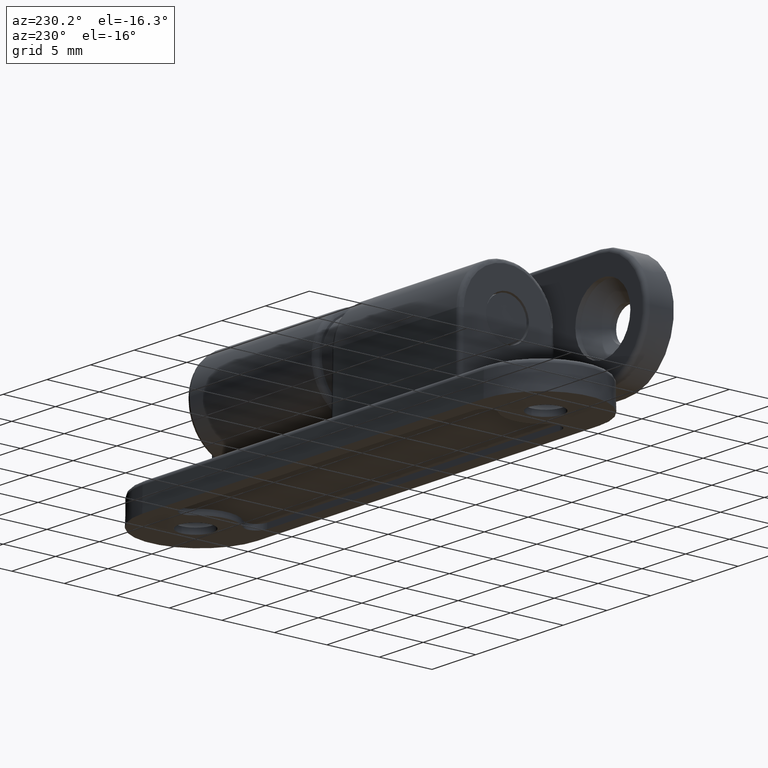
[diagram: clean part render]
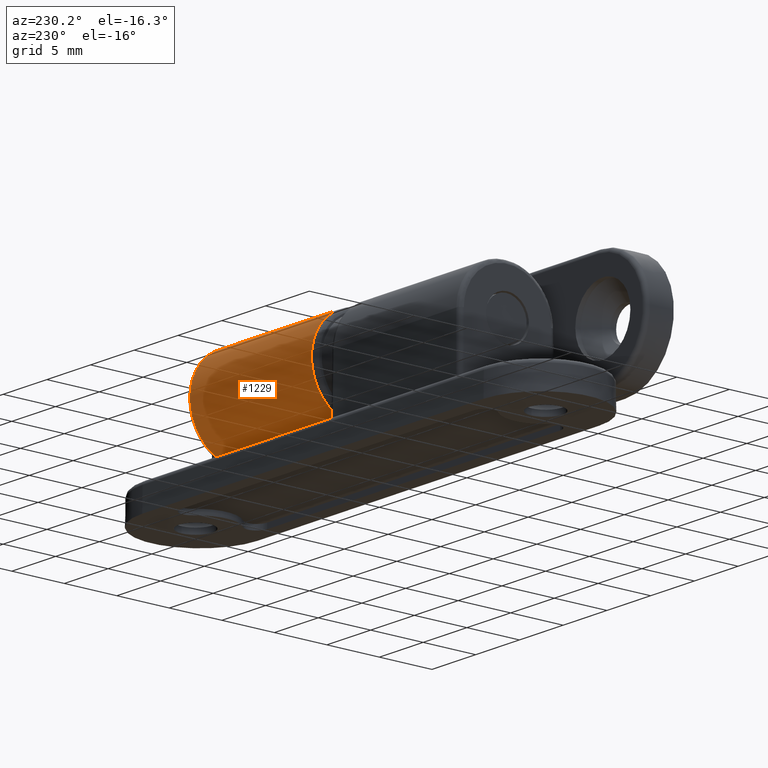
[diagram: same view with one face highlighted and labeled with its STEP entity id]
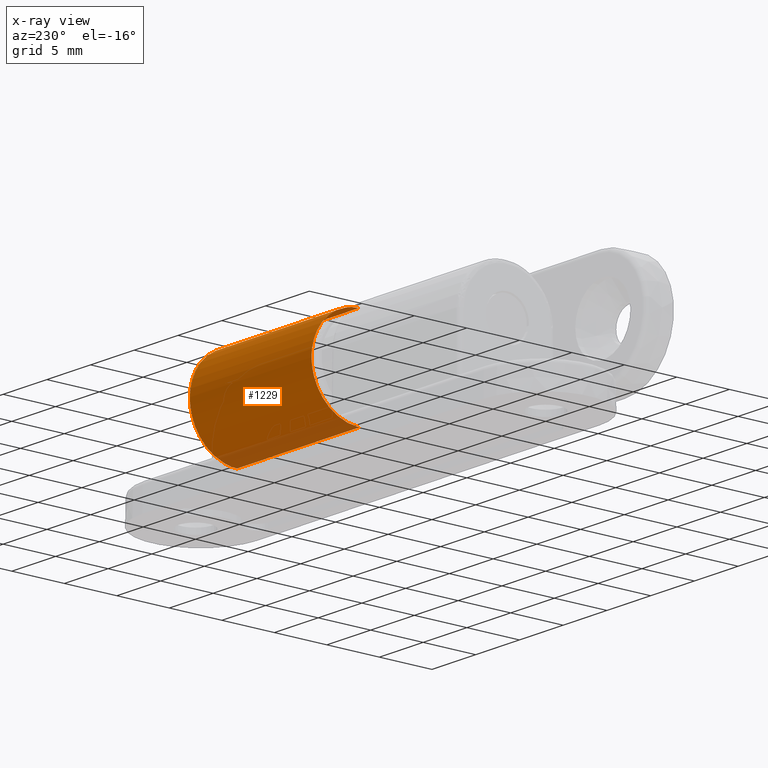
[diagram: x-ray of the same camera — body ghosted, the highlighted face saturated]
A machine part, auxiliary view. The second image highlights one B-rep face of the part: STEP entity #1229.
The next image is the same camera in x-ray: the body ghosted, the highlighted face saturated — about 14% of this face is hidden behind the body in this view.
In plain terms, the highlighted cylindrical surface (partial cylindrical patch) has radius 4.55 mm, axis along (1, -0, 0).
Its self-contained STEP definition (entity closure, byte-faithful):
#62=B_SPLINE_CURVE_WITH_KNOTS('',3,(#2119,#2120,#2121,#2122,#2123,#2124,
#2125,#2126,#2127,#2128,#2129,#2130,#2131,#2132,#2133,#2134,#2135,#2136,
#2137,#2138,#2139,#2140,#2141,#2142,#2143,#2144,#2145,#2146,#2147,#2148,
#2149,#2150,#2151,#2152,#2153,#2154,#2155,#2156,#2157,#2158,#2159,#2160,
#2161,#2162,#2163,#2164,#2165,#2166,#2167,#2168,#2169,#2170,#2171,#2172,
#2173,#2174,#2175,#2176,#2177,#2178,#2179,#2180,#2181,#2182,#2183,#2184,
#2185,#2186,#2187,#2188,#2189,#2190,#2191,#2192,#2193,#2194,#2195,#2196,
#2197,#2198,#2199,#2200,#2201,#2202,#2203,#2204,#2205,#2206,#2207,#2208,
#2209,#2210,#2211,#2212,#2213,#2214,#2215,#2216,#2217,#2218,#2219,#2220,
#2221,#2222,#2223,#2224,#2225,#2226,#2227,#2228,#2229,#2230,#2231,#2232,
#2233,#2234,#2235,#2236,#2237,#2238,#2239,#2240,#2241,#2242,#2243,#2244,
#2245,#2246,#2247,#2248,#2249,#2250,#2251,#2252,#2253,#2254,#2255,#2256,
#2257,#2258,#2259,#2260,#2261,#2262,#2263,#2264,#2265,#2266),
 .UNSPECIFIED.,.F.,.F.,(4,3,3,3,3,3,3,3,3,3,3,3,3,3,3,3,3,3,3,3,3,3,3,3,
3,3,3,3,3,3,3,3,3,3,3,3,3,3,3,3,3,3,3,3,3,3,3,3,3,4),(0.,0.0220864110622519,
0.0443492554398847,0.0668983379467098,0.0883819358082534,0.0896367224313403,
0.111276368607198,0.112575381639334,0.134555348433618,0.135726396687163,
0.1592208815081,0.182927323232232,0.20696964107204,0.216954899475843,0.240783741220988,
0.25,0.274181113312349,0.298734223252613,0.323905884750016,0.349485095444977,
0.375498946745718,0.401977769700323,0.429229210957132,0.456959053474368,
0.485474678145715,0.5,0.528678134910078,0.556343368046318,0.583438547244325,
0.610015907360414,0.636112103409371,0.661759574119072,0.6867870035,0.71148624003663,
0.73571492113616,0.75,0.773826215286149,0.783057505414613,0.807143200204973,
0.831250300179351,0.854644740362747,0.877810003393544,0.899568933898584,
0.900759887359895,0.922283448806649,0.923506875081518,0.945973491405082,
0.96828814808885,0.990390577973673,1.),.UNSPECIFIED.);
#63=B_SPLINE_CURVE_WITH_KNOTS('',3,(#2267,#2268,#2269,#2270,#2271,#2272,
#2273,#2274,#2275,#2276,#2277,#2278,#2279,#2280,#2281,#2282,#2283,#2284,
#2285,#2286,#2287,#2288,#2289,#2290,#2291,#2292,#2293,#2294,#2295,#2296,
#2297,#2298,#2299,#2300,#2301,#2302,#2303,#2304,#2305,#2306,#2307,#2308,
#2309,#2310,#2311,#2312,#2313,#2314,#2315,#2316,#2317,#2318,#2319,#2320,
#2321,#2322,#2323,#2324,#2325,#2326,#2327,#2328,#2329,#2330,#2331,#2332,
#2333,#2334,#2335,#2336,#2337,#2338,#2339,#2340,#2341,#2342,#2343,#2344,
#2345,#2346,#2347,#2348,#2349,#2350,#2351,#2352,#2353,#2354,#2355,#2356,
#2357,#2358,#2359,#2360,#2361,#2362,#2363,#2364,#2365,#2366,#2367,#2368,
#2369,#2370,#2371,#2372,#2373,#2374,#2375,#2376,#2377,#2378,#2379,#2380,
#2381,#2382,#2383,#2384,#2385,#2386,#2387,#2388,#2389,#2390,#2391,#2392,
#2393,#2394,#2395,#2396,#2397,#2398,#2399,#2400,#2401,#2402,#2403,#2404,
#2405,#2406,#2407,#2408,#2409,#2410,#2411,#2412,#2413,#2414),
 .UNSPECIFIED.,.F.,.F.,(4,3,3,3,3,3,3,3,3,3,3,3,3,3,3,3,3,3,3,3,3,3,3,3,
3,3,3,3,3,3,3,3,3,3,3,3,3,3,3,3,3,3,3,3,3,3,3,3,3,4),(0.,0.0220864109887631,
0.0443492552938548,0.0668983377294486,0.0883819355395404,0.0896367221436551,
0.111276368267358,0.11257538128236,0.134555348025483,0.135726396261697,
0.159220881016248,0.182927322675133,0.206969640452506,0.216954899189374,
0.240783740873804,0.25,0.274181113418606,0.298734223432689,0.323905884953182,
0.349485095639664,0.375498946900172,0.401977769782878,0.429229210921994,
0.45695905329541,0.485474677789302,0.5,0.528678134871698,0.556343368012736,
0.583438547148655,0.610015907196454,0.636112103171831,0.661759573803517,
0.686787003099248,0.711486239548054,0.735714920553722,0.75,0.773826215176287,
0.78305750593313,0.807143200614942,0.831250300538075,0.85464474060458,0.87781000351621,
0.899568933936551,0.900759887361342,0.922283448719083,0.923506874959792,
0.945973491156779,0.968288147712546,0.990390577466216,1.),.UNSPECIFIED.);
#102=LINE('',#2109,#174);
#106=LINE('',#2116,#178);
#174=VECTOR('',#1588,13.978751945018);
#178=VECTOR('',#1594,13.978751945018);
#299=FACE_OUTER_BOUND('',#391,.T.);
#391=EDGE_LOOP('',(#917,#918,#919,#920));
#609=VERTEX_POINT('',#2107);
#610=VERTEX_POINT('',#2108);
#611=VERTEX_POINT('',#2113);
#612=VERTEX_POINT('',#2115);
#732=EDGE_CURVE('',#609,#610,#102,.T.);
#736=EDGE_CURVE('',#611,#612,#106,.T.);
#738=EDGE_CURVE('',#611,#610,#62,.T.);
#739=EDGE_CURVE('',#609,#612,#63,.T.);
#917=ORIENTED_EDGE('',*,*,#736,.F.);
#918=ORIENTED_EDGE('',*,*,#738,.T.);
#919=ORIENTED_EDGE('',*,*,#732,.F.);
#920=ORIENTED_EDGE('',*,*,#739,.T.);
#1181=CYLINDRICAL_SURFACE('',#1348,4.54999999999995);
#1229=ADVANCED_FACE('',(#299),#1181,.T.);
#1348=AXIS2_PLACEMENT_3D('',#2118,#1596,#1597);
#1588=DIRECTION('',(1.,0.,-1.22464679914735E-16));
#1594=DIRECTION('',(-1.,0.,1.22464679914735E-16));
#1596=DIRECTION('center_axis',(1.,0.,-1.22464679914735E-16));
#1597=DIRECTION('ref_axis',(-1.22464679914735E-16,-3.21624529935328E-16,
-1.));
#2107=CARTESIAN_POINT('',(1.260624027491,3.50017325006008,-0.0397057365188448));
#2108=CARTESIAN_POINT('',(15.239375972509,3.50017325006008,-0.0397057365188465));
#2109=CARTESIAN_POINT('',(0.487114828091006,3.50017325006008,-0.0397057365188447));
#2113=CARTESIAN_POINT('',(15.239375972509,12.599826749944,-0.039705736518851));
#2115=CARTESIAN_POINT('',(1.260624027491,12.599826749944,-0.0397057365188493));
#2116=CARTESIAN_POINT('',(0.487114828091006,12.599826749944,-0.0397057365188492));
#2118=CARTESIAN_POINT('Origin',(0.487114828091006,8.05000000000208,-1.24795033404018E-12));
#2119=CARTESIAN_POINT('Ctrl Pts',(15.2393759725095,12.599826749944,-0.0397057365188541));
#2120=CARTESIAN_POINT('Ctrl Pts',(15.238318799767,12.5986676803056,-0.172521961786342));
#2121=CARTESIAN_POINT('Ctrl Pts',(15.237281685112,12.591462181649,-0.303923490471207));
#2122=CARTESIAN_POINT('Ctrl Pts',(15.2362662505249,12.578716817721,-0.433493198429596));
#2123=CARTESIAN_POINT('Ctrl Pts',(15.2352427043215,12.5658696397497,-0.564097950654957));
#2124=CARTESIAN_POINT('Ctrl Pts',(15.2342411749573,12.5473937527564,-0.692841771377311));
#2125=CARTESIAN_POINT('Ctrl Pts',(15.2332629272725,12.5237837259943,-0.819346387499533));
#2126=CARTESIAN_POINT('Ctrl Pts',(15.232272102049,12.4998701400923,-0.947477500399922));
#2127=CARTESIAN_POINT('Ctrl Pts',(15.2313051564423,12.4706895163926,-1.07331157026224));
#2128=CARTESIAN_POINT('Ctrl Pts',(15.2303631198036,12.4367311118463,-1.19650264348277));
#2129=CARTESIAN_POINT('Ctrl Pts',(15.229465596088,12.404377302902,-1.31387271724968));
#2130=CARTESIAN_POINT('Ctrl Pts',(15.2285906850795,12.3676863052883,-1.42884415775529));
#2131=CARTESIAN_POINT('Ctrl Pts',(15.2277390506109,12.3270613982529,-1.54115560996495));
#2132=CARTESIAN_POINT('Ctrl Pts',(15.2276893094295,12.3246886304213,-1.5477153542294));
#2133=CARTESIAN_POINT('Ctrl Pts',(15.22763964767,12.3223024363509,-1.55426603736027));
#2134=CARTESIAN_POINT('Ctrl Pts',(15.2275900654703,12.3199028940521,-1.5608076119724));
#2135=CARTESIAN_POINT('Ctrl Pts',(15.2267349868153,12.278521159999,-1.67362150194775));
#2136=CARTESIAN_POINT('Ctrl Pts',(15.2259035699646,12.2331713908618,-1.78372247172965));
#2137=CARTESIAN_POINT('Ctrl Pts',(15.2250962171035,12.1842451917321,-1.89088307323162));
#2138=CARTESIAN_POINT('Ctrl Pts',(15.2250477522681,12.1813081857494,-1.89731585021657));
#2139=CARTESIAN_POINT('Ctrl Pts',(15.2249993741428,12.1783582863507,-1.90373804245352));
#2140=CARTESIAN_POINT('Ctrl Pts',(15.2249510828113,12.1753955761217,-1.91014960481092));
#2141=CARTESIAN_POINT('Ctrl Pts',(15.2241339687124,12.1252649994119,-2.01863652852054));
#2142=CARTESIAN_POINT('Ctrl Pts',(15.2233417114621,12.0714683279807,-2.12407688560795));
#2143=CARTESIAN_POINT('Ctrl Pts',(15.2225743568752,12.0143944525555,-2.22627332220926));
#2144=CARTESIAN_POINT('Ctrl Pts',(15.2225334737721,12.0113536717042,-2.23171814201816));
#2145=CARTESIAN_POINT('Ctrl Pts',(15.2224926613304,12.0083035845937,-2.23715376096751));
#2146=CARTESIAN_POINT('Ctrl Pts',(15.2224519195475,12.0052442488207,-2.24258015157484));
#2147=CARTESIAN_POINT('Ctrl Pts',(15.2216345260748,11.9438654647587,-2.35144863873612));
#2148=CARTESIAN_POINT('Ctrl Pts',(15.2208455904531,11.8787656524675,-2.4565994475041));
#2149=CARTESIAN_POINT('Ctrl Pts',(15.2200846154578,11.8103931821402,-2.55784083496594));
#2150=CARTESIAN_POINT('Ctrl Pts',(15.2193167752809,11.7414038854733,-2.6599955776737));
#2151=CARTESIAN_POINT('Ctrl Pts',(15.2185773990533,11.6690825718328,-2.75817019792975));
#2152=CARTESIAN_POINT('Ctrl Pts',(15.2178654065742,11.5938635952241,-2.85221492200474));
#2153=CARTESIAN_POINT('Ctrl Pts',(15.2171433264881,11.517578905845,-2.94759208462067));
#2154=CARTESIAN_POINT('Ctrl Pts',(15.2164493967944,11.4383137727075,-3.03872163802835));
#2155=CARTESIAN_POINT('Ctrl Pts',(15.2157820421546,11.3564953696784,-3.12549343162686));
#2156=CARTESIAN_POINT('Ctrl Pts',(15.2155048763436,11.3225145404641,-3.16153150362206));
#2157=CARTESIAN_POINT('Ctrl Pts',(15.2152322905693,11.2880929989628,-3.19681843230703));
#2158=CARTESIAN_POINT('Ctrl Pts',(15.2149641619014,11.2532601308318,-3.2313485289252));
#2159=CARTESIAN_POINT('Ctrl Pts',(15.2143242990822,11.170134900752,-3.31375122442734));
#2160=CARTESIAN_POINT('Ctrl Pts',(15.2137108115284,11.0847705209866,-3.39171305108241));
#2161=CARTESIAN_POINT('Ctrl Pts',(15.213121012064,10.997712104398,-3.46535963393676));
#2162=CARTESIAN_POINT('Ctrl Pts',(15.2128928958782,10.9640406022431,-3.49384385373371));
#2163=CARTESIAN_POINT('Ctrl Pts',(15.2126683214472,10.9301151322018,-3.52168273306101));
#2164=CARTESIAN_POINT('Ctrl Pts',(15.2124471266466,10.8959651761171,-3.54888416988157));
#2165=CARTESIAN_POINT('Ctrl Pts',(15.2118667678845,10.8063643980249,-3.62025380497846));
#2166=CARTESIAN_POINT('Ctrl Pts',(15.2113140260791,10.7152110860268,-3.68724315985132));
#2167=CARTESIAN_POINT('Ctrl Pts',(15.2107893761526,10.6229905022964,-3.75000809158745));
#2168=CARTESIAN_POINT('Ctrl Pts',(15.2102566551335,10.5293512185364,-3.81373858444789));
#2169=CARTESIAN_POINT('Ctrl Pts',(15.2097528955301,10.4346114370911,-3.87311375348248));
#2170=CARTESIAN_POINT('Ctrl Pts',(15.209278367551,10.3392269633256,-3.92830730217765));
#2171=CARTESIAN_POINT('Ctrl Pts',(15.2087918850772,10.2414395265579,-3.98489130835753));
#2172=CARTESIAN_POINT('Ctrl Pts',(15.2083361227307,10.142974491292,-4.03708037614802));
#2173=CARTESIAN_POINT('Ctrl Pts',(15.2079111678899,10.0442695801392,-4.08507195652444));
#2174=CARTESIAN_POINT('Ctrl Pts',(15.2074793326926,9.9439665580575,-4.13384055871461));
#2175=CARTESIAN_POINT('Ctrl Pts',(15.2070793064207,9.84341575878948,-4.17827469687491));
#2176=CARTESIAN_POINT('Ctrl Pts',(15.2067110288459,9.74302278789042,-4.21859152320623));
#2177=CARTESIAN_POINT('Ctrl Pts',(15.2063364935179,9.64092394489827,-4.25959341093483));
#2178=CARTESIAN_POINT('Ctrl Pts',(15.2059947905777,9.53898826695397,-4.2963369447897));
#2179=CARTESIAN_POINT('Ctrl Pts',(15.205685768087,9.43758832323468,-4.3290598907837));
#2180=CARTESIAN_POINT('Ctrl Pts',(15.2053712221273,9.33437595662621,-4.36236772680963));
#2181=CARTESIAN_POINT('Ctrl Pts',(15.2050905316786,9.2317185451272,-4.39151005882054));
#2182=CARTESIAN_POINT('Ctrl Pts',(15.2048435083257,9.12995474839303,-4.41674597413661));
#2183=CARTESIAN_POINT('Ctrl Pts',(15.2045892771463,9.02522161378484,-4.44271824129429));
#2184=CARTESIAN_POINT('Ctrl Pts',(15.2043707044833,8.92143494502707,-4.46455290329016));
#2185=CARTESIAN_POINT('Ctrl Pts',(15.2041876000519,8.81890805123272,-4.48253959956185));
#2186=CARTESIAN_POINT('Ctrl Pts',(15.2040012812073,8.71458128950637,-4.50084205374469));
#2187=CARTESIAN_POINT('Ctrl Pts',(15.2038516875987,8.61155870507978,-4.51516037679034));
#2188=CARTESIAN_POINT('Ctrl Pts',(15.2037386442999,8.51011566171159,-4.52580528299203));
#2189=CARTESIAN_POINT('Ctrl Pts',(15.2036223976866,8.40579802094576,-4.53675183451755));
#2190=CARTESIAN_POINT('Ctrl Pts',(15.2035448062292,8.30315054723676,-4.54381394083433));
#2191=CARTESIAN_POINT('Ctrl Pts',(15.2035056699206,8.20241810902206,-4.54733351515273));
#2192=CARTESIAN_POINT('Ctrl Pts',(15.2034857346224,8.15110690321474,-4.54912631998707));
#2193=CARTESIAN_POINT('Ctrl Pts',(15.203475776723,8.10029174401488,-4.55000000000109));
#2194=CARTESIAN_POINT('Ctrl Pts',(15.2034757623935,8.05000000000206,-4.55000000000109));
#2195=CARTESIAN_POINT('Ctrl Pts',(15.203475734102,7.95070626770948,-4.55000000000111));
#2196=CARTESIAN_POINT('Ctrl Pts',(15.2035144739378,7.84937157049463,-4.54659419823993));
#2197=CARTESIAN_POINT('Ctrl Pts',(15.203592216502,7.74621828584967,-4.53943383849037));
#2198=CARTESIAN_POINT('Ctrl Pts',(15.2036672132259,7.64670833942464,-4.53252638016256));
#2199=CARTESIAN_POINT('Ctrl Pts',(15.2037785010906,7.54550591366229,-4.52212481002935));
#2200=CARTESIAN_POINT('Ctrl Pts',(15.2039262500446,7.44285765136716,-4.50791873582311));
#2201=CARTESIAN_POINT('Ctrl Pts',(15.2040709545684,7.34232450033409,-4.49400538384003));
#2202=CARTESIAN_POINT('Ctrl Pts',(15.2042506309062,7.24040429923484,-4.47644259532955));
#2203=CARTESIAN_POINT('Ctrl Pts',(15.2044654515971,7.13737683389166,-4.4549428268712));
#2204=CARTESIAN_POINT('Ctrl Pts',(15.2046761668251,7.03631833827281,-4.4338539429574));
#2205=CARTESIAN_POINT('Ctrl Pts',(15.2049206964676,6.93419433908648,-4.40897701247821));
#2206=CARTESIAN_POINT('Ctrl Pts',(15.2051992273127,6.83131815388336,-4.38004617658916));
#2207=CARTESIAN_POINT('Ctrl Pts',(15.2054727155562,6.73030446832155,-4.35163911276029));
#2208=CARTESIAN_POINT('Ctrl Pts',(15.2057789876182,6.62856546921124,-4.31932350038211));
#2209=CARTESIAN_POINT('Ctrl Pts',(15.206118219815,6.52644774174489,-4.28285457535842));
#2210=CARTESIAN_POINT('Ctrl Pts',(15.206451618898,6.42608593348665,-4.24701273524484));
#2211=CARTESIAN_POINT('Ctrl Pts',(15.2068168581967,6.32535822877212,-4.20715910792598));
#2212=CARTESIAN_POINT('Ctrl Pts',(15.2072140563432,6.22464380110572,-4.16306941030791));
#2213=CARTESIAN_POINT('Ctrl Pts',(15.2076016520119,6.12636419862203,-4.12004560472286));
#2214=CARTESIAN_POINT('Ctrl Pts',(15.2080196838753,6.02809724270378,-4.07298803107156));
#2215=CARTESIAN_POINT('Ctrl Pts',(15.2084681579984,5.9302438879907,-4.02169688878347));
#2216=CARTESIAN_POINT('Ctrl Pts',(15.2089107511341,5.83367371623334,-3.97107834397307));
#2217=CARTESIAN_POINT('Ctrl Pts',(15.2093829969911,5.73750627654586,-3.91633649437617));
#2218=CARTESIAN_POINT('Ctrl Pts',(15.2098847423527,5.64217566129167,-3.85728838313638));
#2219=CARTESIAN_POINT('Ctrl Pts',(15.2103769287546,5.54866122927308,-3.79936522204446));
#2220=CARTESIAN_POINT('Ctrl Pts',(15.2108975035643,5.45595196702919,-3.73729827654508));
#2221=CARTESIAN_POINT('Ctrl Pts',(15.2114461250128,5.36450593005743,-3.67092419966758));
#2222=CARTESIAN_POINT('Ctrl Pts',(15.2117695887882,5.31058991851057,-3.63179045900647));
#2223=CARTESIAN_POINT('Ctrl Pts',(15.2121027981756,5.25711394823307,-3.59115964701345));
#2224=CARTESIAN_POINT('Ctrl Pts',(15.2124456466235,5.20418022654624,-3.54899998398964));
#2225=CARTESIAN_POINT('Ctrl Pts',(15.213017486724,5.11589158209221,-3.47868149172429));
#2226=CARTESIAN_POINT('Ctrl Pts',(15.2136119289826,5.0290990419246,-3.40410123460382));
#2227=CARTESIAN_POINT('Ctrl Pts',(15.2142317245602,4.94432760867017,-3.3251272847769));
#2228=CARTESIAN_POINT('Ctrl Pts',(15.2144718597528,4.91148354654872,-3.294529414545));
#2229=CARTESIAN_POINT('Ctrl Pts',(15.2147157990411,4.87894341855178,-3.26327216285489));
#2230=CARTESIAN_POINT('Ctrl Pts',(15.2149636956842,4.84673986554132,-3.23134852695544));
#2231=CARTESIAN_POINT('Ctrl Pts',(15.2156104918311,4.76271640422863,-3.14805540755689));
#2232=CARTESIAN_POINT('Ctrl Pts',(15.2162832363514,4.68108431667344,-3.06035520559373));
#2233=CARTESIAN_POINT('Ctrl Pts',(15.2169836146282,4.60226308594717,-2.96834033713345));
#2234=CARTESIAN_POINT('Ctrl Pts',(15.2176846153378,4.52337180605011,-2.87624369419214));
#2235=CARTESIAN_POINT('Ctrl Pts',(15.2184133202833,4.44729620281272,-2.77982446168932));
#2236=CARTESIAN_POINT('Ctrl Pts',(15.2191710783807,4.37448224054791,-2.67922067335558));
#2237=CARTESIAN_POINT('Ctrl Pts',(15.2199064354541,4.3038208218567,-2.58159095800623));
#2238=CARTESIAN_POINT('Ctrl Pts',(15.2206691591097,4.23623107055039,-2.48002043032676));
#2239=CARTESIAN_POINT('Ctrl Pts',(15.2214599696447,4.17214539880805,-2.37467953653218));
#2240=CARTESIAN_POINT('Ctrl Pts',(15.2222430332234,4.10868752459613,-2.27037058562244));
#2241=CARTESIAN_POINT('Ctrl Pts',(15.2230536344588,4.04866540845257,-2.16236467092343));
#2242=CARTESIAN_POINT('Ctrl Pts',(15.2238919343462,3.99252359978682,-2.05087247172964));
#2243=CARTESIAN_POINT('Ctrl Pts',(15.2246793421544,3.93979008618236,-1.94614881670847));
#2244=CARTESIAN_POINT('Ctrl Pts',(15.225491181547,3.89048023907133,-1.83834961165727));
#2245=CARTESIAN_POINT('Ctrl Pts',(15.226327188193,3.84498258115481,-1.72768743187167));
#2246=CARTESIAN_POINT('Ctrl Pts',(15.2263729461869,3.84249231201384,-1.7216304473144));
#2247=CARTESIAN_POINT('Ctrl Pts',(15.2264187765704,3.84001346804947,-1.71556489445546));
#2248=CARTESIAN_POINT('Ctrl Pts',(15.2264646792972,3.83754611460299,-1.70949081123409));
#2249=CARTESIAN_POINT('Ctrl Pts',(15.2272942584475,3.79295475545974,-1.59971666161791));
#2250=CARTESIAN_POINT('Ctrl Pts',(15.2281474641956,3.75211493560482,-1.48715361151972));
#2251=CARTESIAN_POINT('Ctrl Pts',(15.2290237324772,3.71542256760436,-1.37204554019103));
#2252=CARTESIAN_POINT('Ctrl Pts',(15.2290735406673,3.71333692730686,-1.36550265279475));
#2253=CARTESIAN_POINT('Ctrl Pts',(15.2291234233822,3.71126469279133,-1.3589515541558));
#2254=CARTESIAN_POINT('Ctrl Pts',(15.2291733805235,3.70920593882704,-1.35239229336805));
#2255=CARTESIAN_POINT('Ctrl Pts',(15.2300907777934,3.67139962685671,-1.23194008589811));
#2256=CARTESIAN_POINT('Ctrl Pts',(15.231033264967,3.63813714941081,-1.10873102919438));
#2257=CARTESIAN_POINT('Ctrl Pts',(15.2319999307183,3.60989247824979,-0.983088079508211));
#2258=CARTESIAN_POINT('Ctrl Pts',(15.2329600581384,3.58183884832054,-0.858294953271303));
#2259=CARTESIAN_POINT('Ctrl Pts',(15.2339440400358,3.55873532184149,-0.731100646507655));
#2260=CARTESIAN_POINT('Ctrl Pts',(15.2349507306388,3.54106968358777,-0.601866090876928));
#2261=CARTESIAN_POINT('Ctrl Pts',(15.2359478469638,3.52357205696475,-0.473860639347745));
#2262=CARTESIAN_POINT('Ctrl Pts',(15.2369672502627,3.51140936097556,-0.343853359949109));
#2263=CARTESIAN_POINT('Ctrl Pts',(15.2380075035198,3.50507914885599,-0.212240984896005));
#2264=CARTESIAN_POINT('Ctrl Pts',(15.2384597720086,3.50232697725811,-0.155020178751023));
#2265=CARTESIAN_POINT('Ctrl Pts',(15.238915976697,3.50067758313544,-0.0974965828417781));
#2266=CARTESIAN_POINT('Ctrl Pts',(15.2393759725095,3.50017325006006,-0.0397057365188512));
#2267=CARTESIAN_POINT('Ctrl Pts',(1.26062402749076,3.50017325006009,-0.0397057365188463));
#2268=CARTESIAN_POINT('Ctrl Pts',(1.261681200229,3.50133231969682,-0.172521961597316));
#2269=CARTESIAN_POINT('Ctrl Pts',(1.26271831487994,3.50853781833451,-0.303923490090642));
#2270=CARTESIAN_POINT('Ctrl Pts',(1.26373374946359,3.5212831822267,-0.433493197856945));
#2271=CARTESIAN_POINT('Ctrl Pts',(1.26475729566353,3.53413036016285,-0.56409794989769));
#2272=CARTESIAN_POINT('Ctrl Pts',(1.26575882502469,3.55260624710468,-0.692841770434619));
#2273=CARTESIAN_POINT('Ctrl Pts',(1.26673707270641,3.57621627379937,-0.819346386372479));
#2274=CARTESIAN_POINT('Ctrl Pts',(1.2677278979269,3.60012985963545,-0.947477499098876));
#2275=CARTESIAN_POINT('Ctrl Pts',(1.26869484353066,3.629310483254,-1.07331156878789));
#2276=CARTESIAN_POINT('Ctrl Pts',(1.2696368801668,3.66326888770424,-1.1965026418376));
#2277=CARTESIAN_POINT('Ctrl Pts',(1.27053440388073,3.69562269658162,-1.31387271553141));
#2278=CARTESIAN_POINT('Ctrl Pts',(1.27140931488791,3.73231369412143,-1.42884415596251));
#2279=CARTESIAN_POINT('Ctrl Pts',(1.27226094935474,3.77293860107554,-1.54115560809731));
#2280=CARTESIAN_POINT('Ctrl Pts',(1.27231069053543,3.77531136887216,-1.54771535227392));
#2281=CARTESIAN_POINT('Ctrl Pts',(1.27236035229426,3.77769756290728,-1.55426603531716));
#2282=CARTESIAN_POINT('Ctrl Pts',(1.27240993449322,3.7800971051704,-1.5608076098419));
#2283=CARTESIAN_POINT('Ctrl Pts',(1.27326501314631,3.82147883913413,-1.67362149974406));
#2284=CARTESIAN_POINT('Ctrl Pts',(1.2740964299966,3.86682860817452,-1.78372246945274));
#2285=CARTESIAN_POINT('Ctrl Pts',(1.27490378285597,3.91575480719926,-1.89088307088246));
#2286=CARTESIAN_POINT('Ctrl Pts',(1.27495224769065,3.91869181314402,-1.89731584779373));
#2287=CARTESIAN_POINT('Ctrl Pts',(1.27500062581539,3.92164171250448,-1.90373803995722));
#2288=CARTESIAN_POINT('Ctrl Pts',(1.27504891714627,3.92460442269491,-1.9101496022414));
#2289=CARTESIAN_POINT('Ctrl Pts',(1.27586603124327,3.9747349992967,-2.01863652589062));
#2290=CARTESIAN_POINT('Ctrl Pts',(1.2766582884931,4.02853167061236,-2.12407688291833));
#2291=CARTESIAN_POINT('Ctrl Pts',(1.27742564307858,4.0856055459142,-2.22627331946192));
#2292=CARTESIAN_POINT('Ctrl Pts',(1.2774665261811,4.08864632672098,-2.23171813919984));
#2293=CARTESIAN_POINT('Ctrl Pts',(1.27750733862226,4.0916964137867,-2.23715375807846));
#2294=CARTESIAN_POINT('Ctrl Pts',(1.27754808040453,4.09475574951468,-2.24258014861527));
#2295=CARTESIAN_POINT('Ctrl Pts',(1.27836547387534,4.15613453340867,-2.35144863566549));
#2296=CARTESIAN_POINT('Ctrl Pts',(1.27915440949605,4.22123434551928,-2.45659944432844));
#2297=CARTESIAN_POINT('Ctrl Pts',(1.27991538448935,4.28960681565344,-2.55784083169301));
#2298=CARTESIAN_POINT('Ctrl Pts',(1.28068322466422,4.35859611213058,-2.65999557431013));
#2299=CARTESIAN_POINT('Ctrl Pts',(1.28142260089077,4.43091742556924,-2.75817019448304));
#2300=CARTESIAN_POINT('Ctrl Pts',(1.28213459336832,4.50613640196386,-2.85221491848387));
#2301=CARTESIAN_POINT('Ctrl Pts',(1.28285667345299,4.5824210911378,-2.94759208103942));
#2302=CARTESIAN_POINT('Ctrl Pts',(1.28355060314568,4.66168622405854,-3.03872163439474));
#2303=CARTESIAN_POINT('Ctrl Pts',(1.28421795778331,4.74350462685928,-3.12549342795059));
#2304=CARTESIAN_POINT('Ctrl Pts',(1.2844951236035,4.77748545720051,-3.16153150122374));
#2305=CARTESIAN_POINT('Ctrl Pts',(1.28476770938669,4.81190699985835,-3.19681843113437));
#2306=CARTESIAN_POINT('Ctrl Pts',(1.28503583806368,4.84673986917244,-3.23134852892536));
#2307=CARTESIAN_POINT('Ctrl Pts',(1.28567570088181,4.92986509909113,-3.31375122426777));
#2308=CARTESIAN_POINT('Ctrl Pts',(1.28628918843365,5.01522947867876,-3.39171305077242));
#2309=CARTESIAN_POINT('Ctrl Pts',(1.28687898789645,5.10228789507436,-3.46535963348696));
#2310=CARTESIAN_POINT('Ctrl Pts',(1.28710710409084,5.13595939850889,-3.49384385437544));
#2311=CARTESIAN_POINT('Ctrl Pts',(1.28733167853091,5.16988486984788,-3.52168273474393));
#2312=CARTESIAN_POINT('Ctrl Pts',(1.28755287333985,5.20403482724508,-3.54888417255637));
#2313=CARTESIAN_POINT('Ctrl Pts',(1.28813323210465,5.29363560579907,-3.62025380788079));
#2314=CARTESIAN_POINT('Ctrl Pts',(1.28868597391205,5.38478891827466,-3.68724316294728));
#2315=CARTESIAN_POINT('Ctrl Pts',(1.289210623841,5.47700950248767,-3.75000809484077));
#2316=CARTESIAN_POINT('Ctrl Pts',(1.28974334486179,5.57064878660776,-3.81373858777257));
#2317=CARTESIAN_POINT('Ctrl Pts',(1.29024710446713,5.66538856841542,-3.87311375685313));
#2318=CARTESIAN_POINT('Ctrl Pts',(1.29072163244734,5.76077304253624,-3.92830730556736));
#2319=CARTESIAN_POINT('Ctrl Pts',(1.29120811492117,5.85856047946388,-3.98489131164858));
#2320=CARTESIAN_POINT('Ctrl Pts',(1.29166387726856,5.95702551487952,-4.03708037933055));
#2321=CARTESIAN_POINT('Ctrl Pts',(1.29208883210967,6.05573042616422,-4.08507195958747));
#2322=CARTESIAN_POINT('Ctrl Pts',(1.29252066730673,6.1560334482546,-4.13384056159532));
#2323=CARTESIAN_POINT('Ctrl Pts',(1.29292069357855,6.25658424751225,-4.17827469957283));
#2324=CARTESIAN_POINT('Ctrl Pts',(1.29328897115305,6.35697721837504,-4.21859152572099));
#2325=CARTESIAN_POINT('Ctrl Pts',(1.29366350648031,6.45907606120623,-4.25959341321348));
#2326=CARTESIAN_POINT('Ctrl Pts',(1.29400520942044,6.56101173896309,-4.29633694684218));
#2327=CARTESIAN_POINT('Ctrl Pts',(1.29431423191038,6.66241168246234,-4.3290598926211));
#2328=CARTESIAN_POINT('Ctrl Pts',(1.29462877786883,6.7656240487262,-4.3623677283892));
#2329=CARTESIAN_POINT('Ctrl Pts',(1.29490946831753,6.86828145984808,-4.39151006016352));
#2330=CARTESIAN_POINT('Ctrl Pts',(1.2951564916696,6.97004525616705,-4.41674597526662));
#2331=CARTESIAN_POINT('Ctrl Pts',(1.29541072284781,7.07477839017999,-4.44271824216345));
#2332=CARTESIAN_POINT('Ctrl Pts',(1.29562929550981,7.17856505830534,-4.4645529039368));
#2333=CARTESIAN_POINT('Ctrl Pts',(1.29581239994078,7.28109195142508,-4.48253960002752));
#2334=CARTESIAN_POINT('Ctrl Pts',(1.29599871878472,7.38541871237445,-4.50084205401034));
#2335=CARTESIAN_POINT('Ctrl Pts',(1.29614831239236,7.48844129598286,-4.51516037690597));
#2336=CARTESIAN_POINT('Ctrl Pts',(1.29626135569117,7.58988433848697,-4.5258052830125));
#2337=CARTESIAN_POINT('Ctrl Pts',(1.29637760230436,7.69420197825611,-4.53675183442879));
#2338=CARTESIAN_POINT('Ctrl Pts',(1.29645519376276,7.7968494509234,-4.54381394070241));
#2339=CARTESIAN_POINT('Ctrl Pts',(1.29649433007302,7.89758188804717,-4.54733351505019));
#2340=CARTESIAN_POINT('Ctrl Pts',(1.29651426537259,7.94889309487713,-4.54912631995464));
#2341=CARTESIAN_POINT('Ctrl Pts',(1.29652422327201,7.99970825505628,-4.55000000000109));
#2342=CARTESIAN_POINT('Ctrl Pts',(1.29652423760183,8.05000000000208,-4.55000000000109));
#2343=CARTESIAN_POINT('Ctrl Pts',(1.29652426589399,8.14929373156738,-4.55000000000111));
#2344=CARTESIAN_POINT('Ctrl Pts',(1.29648552605926,8.25062842808424,-4.54659419828985));
#2345=CARTESIAN_POINT('Ctrl Pts',(1.29640778349557,8.35378171206466,-4.53943383863544));
#2346=CARTESIAN_POINT('Ctrl Pts',(1.29633278677215,8.45329165799905,-4.53252638038895));
#2347=CARTESIAN_POINT('Ctrl Pts',(1.29622149890839,8.55449408330692,-4.5221248103686));
#2348=CARTESIAN_POINT('Ctrl Pts',(1.29607374995574,8.65714234518642,-4.50791873630066));
#2349=CARTESIAN_POINT('Ctrl Pts',(1.29592904543367,8.75767549556462,-4.49400538448733));
#2350=CARTESIAN_POINT('Ctrl Pts',(1.29574936909686,8.85959569603948,-4.476442596189));
#2351=CARTESIAN_POINT('Ctrl Pts',(1.29553454840793,8.9626231607926,-4.45494282798137));
#2352=CARTESIAN_POINT('Ctrl Pts',(1.29532383318192,9.06368165580458,-4.43385394431937));
#2353=CARTESIAN_POINT('Ctrl Pts',(1.29507930354039,9.16580565441657,-4.40897701413117));
#2354=CARTESIAN_POINT('Ctrl Pts',(1.29480077269786,9.26868183908216,-4.38004617856858));
#2355=CARTESIAN_POINT('Ctrl Pts',(1.29452728445678,9.3696955240909,-4.35163911506735));
#2356=CARTESIAN_POINT('Ctrl Pts',(1.29422101239681,9.47143452268318,-4.31932350305298));
#2357=CARTESIAN_POINT('Ctrl Pts',(1.29388178020251,9.57355224967058,-4.28285457842567));
#2358=CARTESIAN_POINT('Ctrl Pts',(1.29354838112209,9.67391405743579,-4.24701273870962));
#2359=CARTESIAN_POINT('Ctrl Pts',(1.29318314182542,9.77464176169497,-4.20715911182152));
#2360=CARTESIAN_POINT('Ctrl Pts',(1.29278594368191,9.87535618894784,-4.16306941466396));
#2361=CARTESIAN_POINT('Ctrl Pts',(1.2923983480162,9.97363579099239,-4.12004560954386));
#2362=CARTESIAN_POINT('Ctrl Pts',(1.29198031615488,10.0719027465114,-4.07298803638871));
#2363=CARTESIAN_POINT('Ctrl Pts',(1.29153184203476,10.1697561008692,-4.02169689462481));
#2364=CARTESIAN_POINT('Ctrl Pts',(1.29108924890213,10.2663262722614,-3.97107835033941));
#2365=CARTESIAN_POINT('Ctrl Pts',(1.29061700304914,10.3624937116266,-3.9163365012961));
#2366=CARTESIAN_POINT('Ctrl Pts',(1.29011525769096,10.4578243266059,-3.85728839063516));
#2367=CARTESIAN_POINT('Ctrl Pts',(1.28962307129262,10.5513387583251,-3.79936523012951));
#2368=CARTESIAN_POINT('Ctrl Pts',(1.28910249648597,10.6440480203155,-3.7372982852435));
#2369=CARTESIAN_POINT('Ctrl Pts',(1.28855387504078,10.7354940570842,-3.67092420900345));
#2370=CARTESIAN_POINT('Ctrl Pts',(1.28823041125302,10.7894100709185,-3.631790466971));
#2371=CARTESIAN_POINT('Ctrl Pts',(1.28789720185259,10.8428860434618,-3.59115965348125));
#2372=CARTESIAN_POINT('Ctrl Pts',(1.28755435339073,10.8958197673797,-3.54899998883059));
#2373=CARTESIAN_POINT('Ctrl Pts',(1.2869825132931,10.9841084115481,-3.4786814970431));
#2374=CARTESIAN_POINT('Ctrl Pts',(1.28638807103752,11.0709009514706,-3.40410124042434));
#2375=CARTESIAN_POINT('Ctrl Pts',(1.28576827546379,11.1556723845246,-3.32512729112045));
#2376=CARTESIAN_POINT('Ctrl Pts',(1.28552814025522,11.1885164489555,-3.2945294188673));
#2377=CARTESIAN_POINT('Ctrl Pts',(1.28528420095088,11.2210565792245,-3.2632721650632));
#2378=CARTESIAN_POINT('Ctrl Pts',(1.2850363042909,11.2532601344626,-3.2313485269555));
#2379=CARTESIAN_POINT('Ctrl Pts',(1.28438950814697,11.3372835954892,-3.14805540784051));
#2380=CARTESIAN_POINT('Ctrl Pts',(1.28371676362857,11.4189156827895,-3.06035520617624));
#2381=CARTESIAN_POINT('Ctrl Pts',(1.2830163853546,11.4977369132922,-2.96834033802598));
#2382=CARTESIAN_POINT('Ctrl Pts',(1.28231538464618,11.5766281931534,-2.87624369517568));
#2383=CARTESIAN_POINT('Ctrl Pts',(1.28158667970173,11.652703796373,-2.77982446275453));
#2384=CARTESIAN_POINT('Ctrl Pts',(1.28082892160529,11.7255177586352,-2.67922067448961));
#2385=CARTESIAN_POINT('Ctrl Pts',(1.28009356453502,11.7961791771211,-2.58159095948734));
#2386=CARTESIAN_POINT('Ctrl Pts',(1.27933084088244,11.863768928254,-2.48002043216557));
#2387=CARTESIAN_POINT('Ctrl Pts',(1.27854003035087,11.9278545998555,-2.37467953873524));
#2388=CARTESIAN_POINT('Ctrl Pts',(1.27775696677571,11.9913124739187,-2.27037058820159));
#2389=CARTESIAN_POINT('Ctrl Pts',(1.2769463655423,12.0513345899465,-2.1623646738861));
#2390=CARTESIAN_POINT('Ctrl Pts',(1.27610806565888,12.1074763985303,-2.05087247507924));
#2391=CARTESIAN_POINT('Ctrl Pts',(1.27532065785331,12.1602099121238,-1.94614882029043));
#2392=CARTESIAN_POINT('Ctrl Pts',(1.27450881846239,12.2095197592451,-1.8383496154668));
#2393=CARTESIAN_POINT('Ctrl Pts',(1.27367281181882,12.2550174171923,-1.72768743590131));
#2394=CARTESIAN_POINT('Ctrl Pts',(1.2736270538263,12.2575076862683,-1.72163045151824));
#2395=CARTESIAN_POINT('Ctrl Pts',(1.27358122344421,12.2599865301683,-1.71556489883391));
#2396=CARTESIAN_POINT('Ctrl Pts',(1.2735353207188,12.2624538835512,-1.70949081578762));
#2397=CARTESIAN_POINT('Ctrl Pts',(1.27270574157125,12.3070452427272,-1.59971666642325));
#2398=CARTESIAN_POINT('Ctrl Pts',(1.2718525358248,12.3478850626372,-1.48715361657046));
#2399=CARTESIAN_POINT('Ctrl Pts',(1.27097626754608,12.3845774307142,-1.37204554547808));
#2400=CARTESIAN_POINT('Ctrl Pts',(1.27092645935736,12.3866630709664,-1.36550265825087));
#2401=CARTESIAN_POINT('Ctrl Pts',(1.27087657664374,12.3887353054374,-1.35895155978131));
#2402=CARTESIAN_POINT('Ctrl Pts',(1.27082661950388,12.3907940593579,-1.35239229916334));
#2403=CARTESIAN_POINT('Ctrl Pts',(1.26990922223852,12.4286003713658,-1.23194009212659));
#2404=CARTESIAN_POINT('Ctrl Pts',(1.26896673506999,12.4618628488868,-1.10873103585388));
#2405=CARTESIAN_POINT('Ctrl Pts',(1.26800006932262,12.4901075201617,-0.983088086592194));
#2406=CARTESIAN_POINT('Ctrl Pts',(1.26703994190655,12.5181611502011,-0.858294960789645));
#2407=CARTESIAN_POINT('Ctrl Pts',(1.26605596001515,12.5412646768295,-0.731100654454399));
#2408=CARTESIAN_POINT('Ctrl Pts',(1.26504926941716,12.5589303152728,-0.601866099241701));
#2409=CARTESIAN_POINT('Ctrl Pts',(1.26405215309721,12.5764279420802,-0.473860648151878));
#2410=CARTESIAN_POINT('Ctrl Pts',(1.26303274980433,12.5885906382954,-0.343853369183233));
#2411=CARTESIAN_POINT('Ctrl Pts',(1.26199249655385,12.5949208506839,-0.212240994546083));
#2412=CARTESIAN_POINT('Ctrl Pts',(1.26154022804141,12.5976730225604,-0.15502018522067));
#2413=CARTESIAN_POINT('Ctrl Pts',(1.26108402332801,12.5993224168403,-0.0974965860927589));
#2414=CARTESIAN_POINT('Ctrl Pts',(1.26062402749076,12.599826749944,-0.0397057365188517));